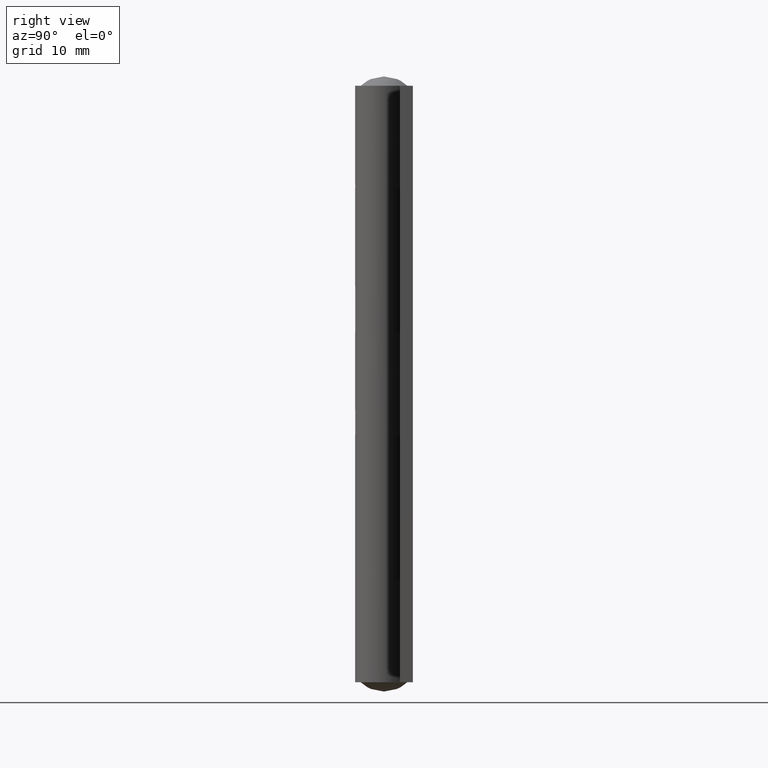
[diagram: clean part render]
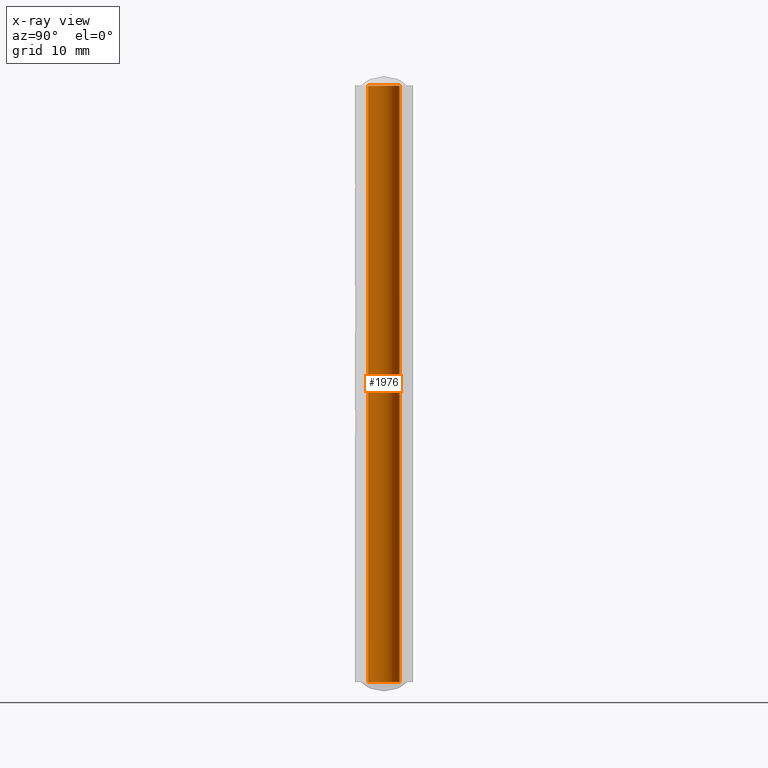
[diagram: x-ray — body ghosted, one internal face saturated and labeled with its STEP entity id]
A machine part, right view, then the same camera in x-ray: the body is ghosted and one INTERNAL B-rep face — a face not visible from any outside direction — is saturated and labeled: STEP entity #1976.
In plain terms, the highlighted face is a freeform B-spline surface patch.
Its self-contained STEP definition (entity closure, byte-faithful):
#1843=CARTESIAN_POINT('',(1.699996999999795,0.0,0.0));
#1844=VERTEX_POINT('',#1843);
#1845=CARTESIAN_POINT('',(0.103782334349548,-1.696826162895086,-1.221245E-015));
#1846=VERTEX_POINT('',#1845);
#1847=CARTESIAN_POINT('',(1.699996999999795,0.0,0.0));
#1848=CARTESIAN_POINT('',(1.699996999999795,-1.599197491351313,0.0));
#1849=CARTESIAN_POINT('',(0.103782334349548,-1.696826162895087,0.0));
#1857=(BOUNDED_CURVE()B_SPLINE_CURVE(2,(#1847,#1848,#1849),.UNSPECIFIED.,.F.,.U.)B_SPLINE_CURVE_WITH_KNOTS((3,3),(0.500000000000000,0.739332962212893),.UNSPECIFIED.)CURVE()GEOMETRIC_REPRESENTATION_ITEM()RATIONAL_B_SPLINE_CURVE((1.0,0.719603993317229,0.976072041610889))REPRESENTATION_ITEM(''));
#1858=EDGE_CURVE('',#1844,#1846,#1857,.T.);
#1877=CARTESIAN_POINT('',(-0.103782334349548,1.696826162895086,-1.221245E-015));
#1878=VERTEX_POINT('',#1877);
#1892=CARTESIAN_POINT('',(-0.103782334349548,1.696826162895086,0.0));
#1893=CARTESIAN_POINT('',(-0.051939606092667,1.699996999999796,0.0));
#1894=CARTESIAN_POINT('',(0.0,1.699996999999795,0.0));
#1895=CARTESIAN_POINT('',(1.699996999999795,1.699996999999795,0.0));
#1896=CARTESIAN_POINT('',(1.699996999999795,0.0,0.0));
#1904=(BOUNDED_CURVE()B_SPLINE_CURVE(2,(#1892,#1893,#1894,#1895,#1896),.UNSPECIFIED.,.F.,.U.)B_SPLINE_CURVE_WITH_KNOTS((3,2,3),(0.239332962212893,0.250000000000000,0.500000000000000),.UNSPECIFIED.)CURVE()GEOMETRIC_REPRESENTATION_ITEM()RATIONAL_B_SPLINE_CURVE((0.976072041610889,0.987502787869319,1.0,0.707106781186548,1.0))REPRESENTATION_ITEM(''));
#1905=EDGE_CURVE('',#1878,#1844,#1904,.T.);
#1910=CARTESIAN_POINT('',(-0.103782334063626,1.696826162912573,65.600008200000119));
#1911=CARTESIAN_POINT('',(1.593043828848948,1.800608496976198,65.600008200000119));
#1912=CARTESIAN_POINT('',(1.696826162912573,0.103782334063626,65.600008200000119));
#1913=CARTESIAN_POINT('',(1.800608496976198,-1.593043828848948,65.600008200000119));
#1914=CARTESIAN_POINT('',(0.103782334063626,-1.696826162912573,65.600008200000119));
#1915=CARTESIAN_POINT('',(-0.103782334063626,1.696826162912573,-1.640000205000007));
#1916=CARTESIAN_POINT('',(1.593043828848948,1.800608496976198,-1.640000205000007));
#1917=CARTESIAN_POINT('',(1.696826162912573,0.103782334063626,-1.640000205000007));
#1918=CARTESIAN_POINT('',(1.800608496976198,-1.593043828848948,-1.640000205000007));
#1919=CARTESIAN_POINT('',(0.103782334063626,-1.696826162912573,-1.640000205000007));
#1927=(BOUNDED_SURFACE()B_SPLINE_SURFACE(2,1,((#1910,#1915),(#1911,#1916),(#1912,#1917),(#1913,#1918),(#1914,#1919)),.UNSPECIFIED.,.F.,.F.,.U.)B_SPLINE_SURFACE_WITH_KNOTS((3,2,3),(2,2),(3.141592653589793,4.712388980384690,6.283185307179586),(0.0,67.240008405000125),.UNSPECIFIED.)GEOMETRIC_REPRESENTATION_ITEM()RATIONAL_B_SPLINE_SURFACE(((1.0,1.0),(0.707106781186548,0.707106781186548),(1.0,1.0),(0.707106781186548,0.707106781186548),(1.0,1.0)))REPRESENTATION_ITEM('')SURFACE());
#1928=CARTESIAN_POINT('',(-0.103782334349548,1.696826162895086,64.000008000000093));
#1929=VERTEX_POINT('',#1928);
#1930=CARTESIAN_POINT('',(1.699996999999795,0.0,64.000008000000093));
#1931=VERTEX_POINT('',#1930);
#1932=CARTESIAN_POINT('',(-0.103782334349548,1.696826162895086,64.000008000000093));
#1933=CARTESIAN_POINT('',(-0.051939606092667,1.699996999999796,64.000008000000093));
#1934=CARTESIAN_POINT('',(0.0,1.699996999999795,64.000008000000093));
#1935=CARTESIAN_POINT('',(1.699996999999795,1.699996999999795,64.000008000000093));
#1936=CARTESIAN_POINT('',(1.699996999999795,0.0,64.000008000000093));
#1944=(BOUNDED_CURVE()B_SPLINE_CURVE(2,(#1932,#1933,#1934,#1935,#1936),.UNSPECIFIED.,.F.,.U.)B_SPLINE_CURVE_WITH_KNOTS((3,2,3),(0.239332962212893,0.250000000000000,0.500000000000000),.UNSPECIFIED.)CURVE()GEOMETRIC_REPRESENTATION_ITEM()RATIONAL_B_SPLINE_CURVE((0.976072041610889,0.987502787869319,1.0,0.707106781186548,1.0))REPRESENTATION_ITEM(''));
#1945=EDGE_CURVE('',#1929,#1931,#1944,.T.);
#1946=ORIENTED_EDGE('',*,*,#1945,.T.);
#1947=CARTESIAN_POINT('',(0.103782334349548,-1.696826162895086,64.000008000000093));
#1948=VERTEX_POINT('',#1947);
#1949=CARTESIAN_POINT('',(1.699996999999795,0.0,64.000008000000093));
#1950=CARTESIAN_POINT('',(1.699996999999795,-1.599197491351313,64.000008000000093));
#1951=CARTESIAN_POINT('',(0.103782334349548,-1.696826162895087,64.000008000000093));
#1959=(BOUNDED_CURVE()B_SPLINE_CURVE(2,(#1949,#1950,#1951),.UNSPECIFIED.,.F.,.U.)B_SPLINE_CURVE_WITH_KNOTS((3,3),(0.500000000000000,0.739332962212893),.UNSPECIFIED.)CURVE()GEOMETRIC_REPRESENTATION_ITEM()RATIONAL_B_SPLINE_CURVE((1.0,0.719603993317229,0.976072041610889))REPRESENTATION_ITEM(''));
#1960=EDGE_CURVE('',#1931,#1948,#1959,.T.);
#1961=ORIENTED_EDGE('',*,*,#1960,.T.);
#1962=CARTESIAN_POINT('',(0.103782334349548,-1.696826162895086,64.000008000000093));
#1963=CARTESIAN_POINT('',(0.103782334349548,-1.696826162895086,-1.221245E-015));
#1964=QUASI_UNIFORM_CURVE('',1,(#1962,#1963),.UNSPECIFIED.,.F.,.U.);
#1965=EDGE_CURVE('',#1948,#1846,#1964,.T.);
#1966=ORIENTED_EDGE('',*,*,#1965,.T.);
#1967=ORIENTED_EDGE('',*,*,#1858,.F.);
#1968=ORIENTED_EDGE('',*,*,#1905,.F.);
#1969=CARTESIAN_POINT('',(-0.103782334349548,1.696826162895086,64.000008000000093));
#1970=CARTESIAN_POINT('',(-0.103782334349548,1.696826162895086,-1.221245E-015));
#1971=QUASI_UNIFORM_CURVE('',1,(#1969,#1970),.UNSPECIFIED.,.F.,.U.);
#1972=EDGE_CURVE('',#1929,#1878,#1971,.T.);
#1973=ORIENTED_EDGE('',*,*,#1972,.F.);
#1974=EDGE_LOOP('',(#1946,#1961,#1966,#1967,#1968,#1973));
#1975=FACE_OUTER_BOUND('',#1974,.T.);
#1976=ADVANCED_FACE('',(#1975),#1927,.T.);